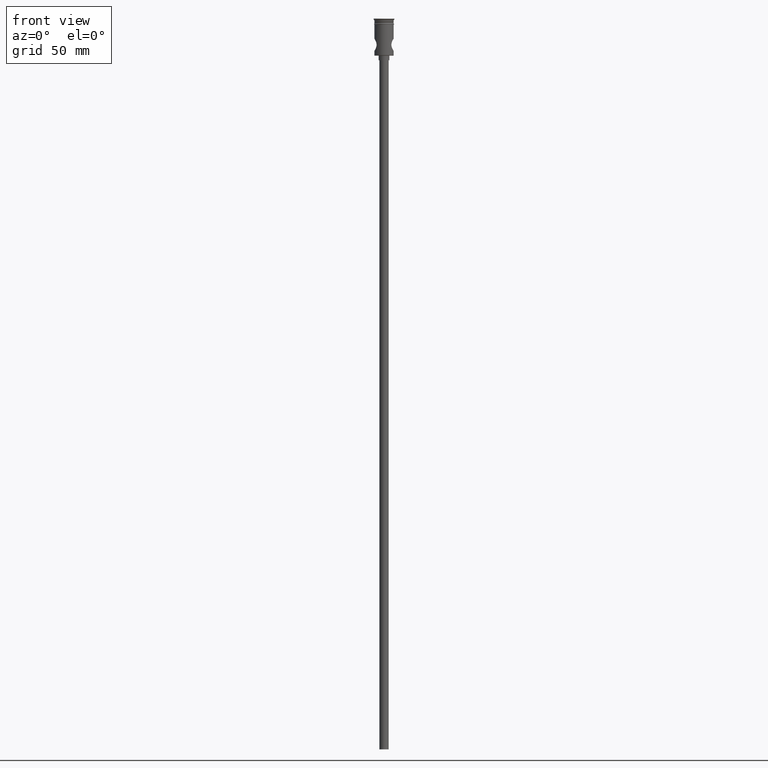
[diagram: clean part render]
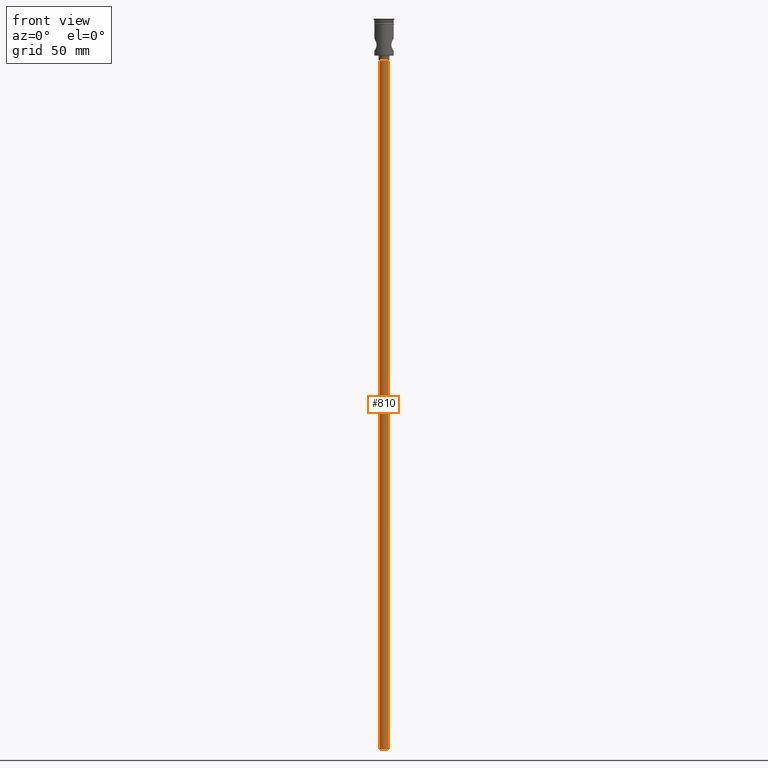
[diagram: same view with one face highlighted and labeled with its STEP entity id]
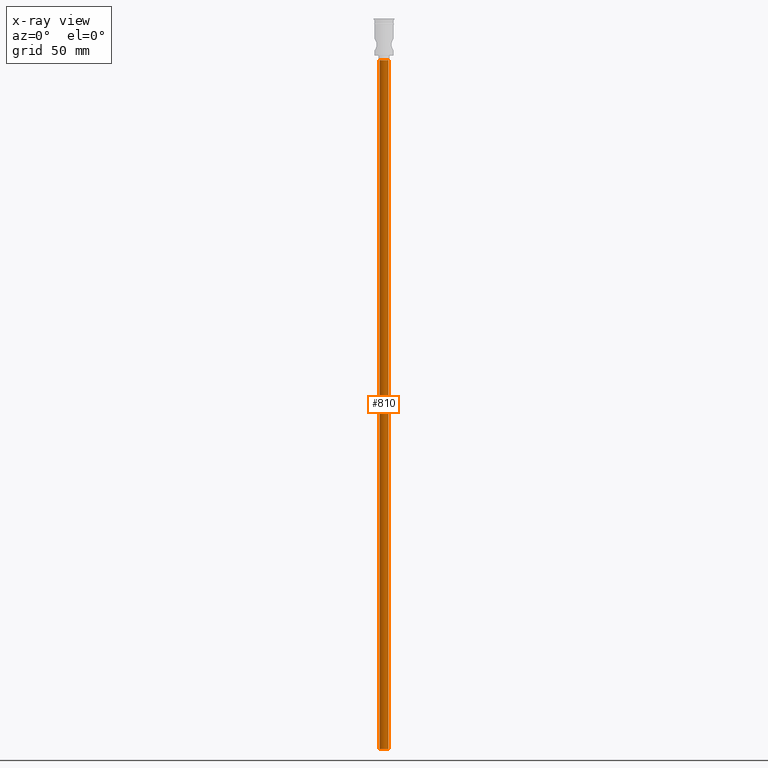
[diagram: x-ray of the same camera — body ghosted, the highlighted face saturated]
A machine part, front view. The second image highlights one B-rep face of the part: STEP entity #810.
The next image is the same camera in x-ray: the body ghosted, the highlighted face saturated — about 0% of this face is hidden behind the body in this view.
In plain terms, the highlighted cylindrical surface (edge-blend (fillet) strip) has radius 3 mm, axis along (-0, -0, 1).
Its self-contained STEP definition (entity closure, byte-faithful):
#29 = DIRECTION ( 'NONE',  ( -0.000000000000000000, -0.000000000000000000, 1.000000000000000000 ) ) ;
#37 = VECTOR ( 'NONE', #29, 1000.000000000000000 ) ;
#93 = DIRECTION ( 'NONE',  ( -0.000000000000000000, -0.000000000000000000, 1.000000000000000000 ) ) ;
#108 = CARTESIAN_POINT ( 'NONE',  ( -3.000000000000000444, 3.673940397442060361E-16, -474.0000000000000568 ) ) ;
#141 = DIRECTION ( 'NONE',  ( -1.000000000000000000, 0.000000000000000000, 0.000000000000000000 ) ) ;
#146 = EDGE_CURVE ( 'NONE', #1099, #450, #473, .T. ) ;
#306 = ORIENTED_EDGE ( 'NONE', *, *, #1415, .F. ) ;
#313 = CARTESIAN_POINT ( 'NONE',  ( -3.000000000000000444, 3.673940397442060361E-16, -474.0000000000000568 ) ) ;
#364 = VERTEX_POINT ( 'NONE', #405 ) ;
#405 = CARTESIAN_POINT ( 'NONE',  ( -3.000000000000000444, 3.673940397442060361E-16, -27.00000000000000000 ) ) ;
#442 = DIRECTION ( 'NONE',  ( 0.000000000000000000, 0.000000000000000000, -1.000000000000000000 ) ) ;
#448 = DIRECTION ( 'NONE',  ( 1.000000000000000000, 0.000000000000000000, 0.000000000000000000 ) ) ;
#450 = VERTEX_POINT ( 'NONE', #1135 ) ;
#457 = CIRCLE ( 'NONE', #770, 3.000000000000000444 ) ;
#473 = LINE ( 'NONE', #1274, #37 ) ;
#475 = EDGE_CURVE ( 'NONE', #1246, #364, #660, .T. ) ;
#547 = ORIENTED_EDGE ( 'NONE', *, *, #475, .F. ) ;
#660 = LINE ( 'NONE', #108, #967 ) ;
#759 = CARTESIAN_POINT ( 'NONE',  ( 0.000000000000000000, 0.000000000000000000, -27.00000000000000000 ) ) ;
#770 = AXIS2_PLACEMENT_3D ( 'NONE', #759, #442, #1239 ) ;
#810 = ADVANCED_FACE ( 'NONE', ( #902 ), #1212, .T. ) ;
#822 = AXIS2_PLACEMENT_3D ( 'NONE', #1262, #1245, #141 ) ;
#828 = EDGE_CURVE ( 'NONE', #450, #364, #457, .T. ) ;
#902 = FACE_OUTER_BOUND ( 'NONE', #977, .T. ) ;
#930 = ORIENTED_EDGE ( 'NONE', *, *, #828, .T. ) ;
#967 = VECTOR ( 'NONE', #93, 1000.000000000000000 ) ;
#971 = CIRCLE ( 'NONE', #822, 3.000000000000000444 ) ;
#977 = EDGE_LOOP ( 'NONE', ( #547, #306, #1006, #930 ) ) ;
#1001 = DIRECTION ( 'NONE',  ( -0.000000000000000000, -0.000000000000000000, 1.000000000000000000 ) ) ;
#1006 = ORIENTED_EDGE ( 'NONE', *, *, #146, .T. ) ;
#1099 = VERTEX_POINT ( 'NONE', #1186 ) ;
#1135 = CARTESIAN_POINT ( 'NONE',  ( 3.000000000000000444, 0.000000000000000000, -27.00000000000000000 ) ) ;
#1186 = CARTESIAN_POINT ( 'NONE',  ( 3.000000000000000444, 0.000000000000000000, -474.0000000000000568 ) ) ;
#1212 = CYLINDRICAL_SURFACE ( 'NONE', #1359, 3.000000000000000444 ) ;
#1239 = DIRECTION ( 'NONE',  ( -1.000000000000000000, 0.000000000000000000, 0.000000000000000000 ) ) ;
#1245 = DIRECTION ( 'NONE',  ( 0.000000000000000000, 0.000000000000000000, -1.000000000000000000 ) ) ;
#1246 = VERTEX_POINT ( 'NONE', #313 ) ;
#1262 = CARTESIAN_POINT ( 'NONE',  ( 0.000000000000000000, 0.000000000000000000, -474.0000000000000568 ) ) ;
#1274 = CARTESIAN_POINT ( 'NONE',  ( 3.000000000000000444, 0.000000000000000000, -474.0000000000000568 ) ) ;
#1332 = CARTESIAN_POINT ( 'NONE',  ( 0.000000000000000000, 0.000000000000000000, -474.0000000000000568 ) ) ;
#1359 = AXIS2_PLACEMENT_3D ( 'NONE', #1332, #1001, #448 ) ;
#1415 = EDGE_CURVE ( 'NONE', #1099, #1246, #971, .T. ) ;